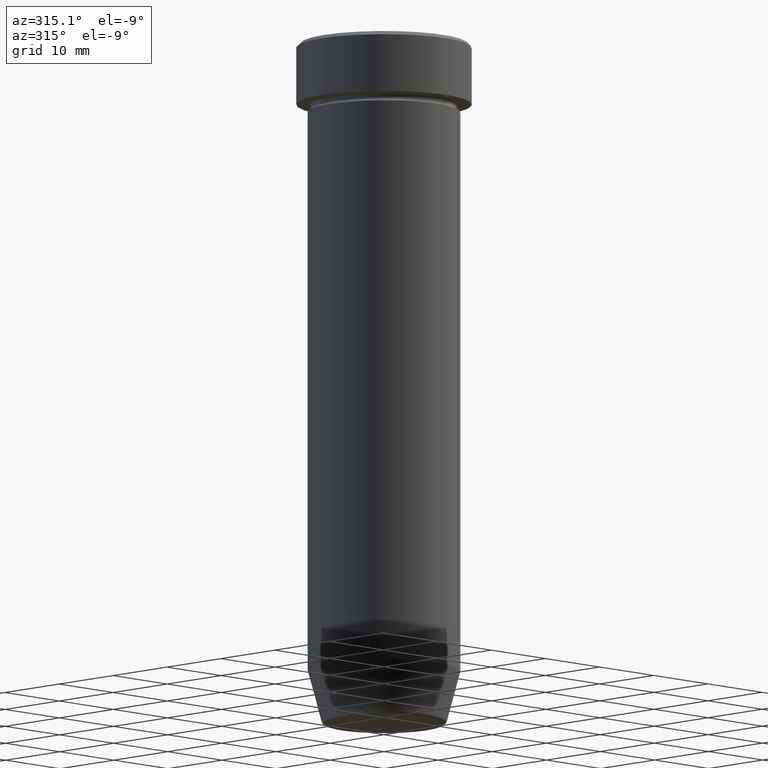
[diagram: clean part render]
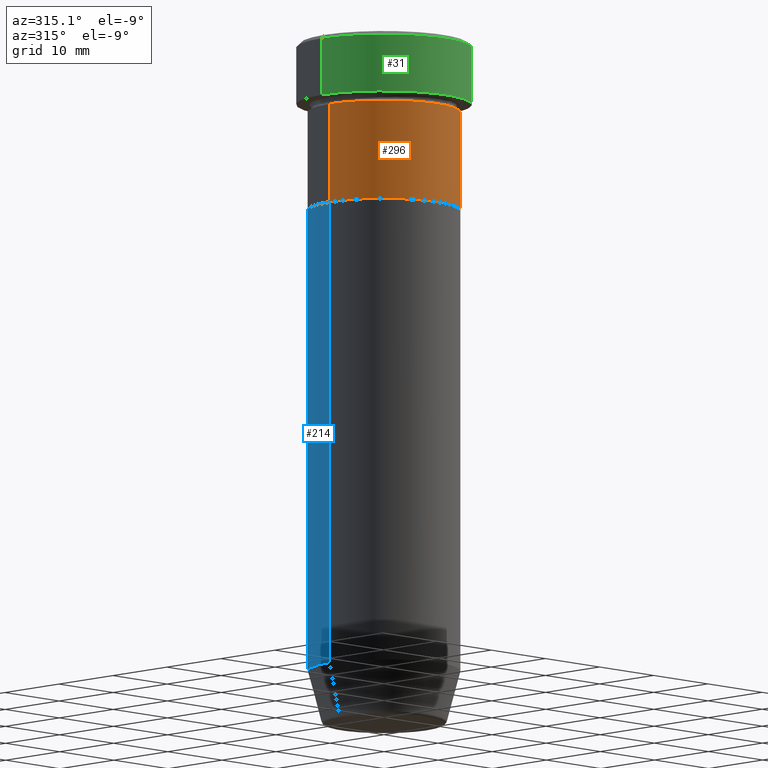
[diagram: same view with three faces highlighted in distinct colors, each labeled with its STEP entity id]
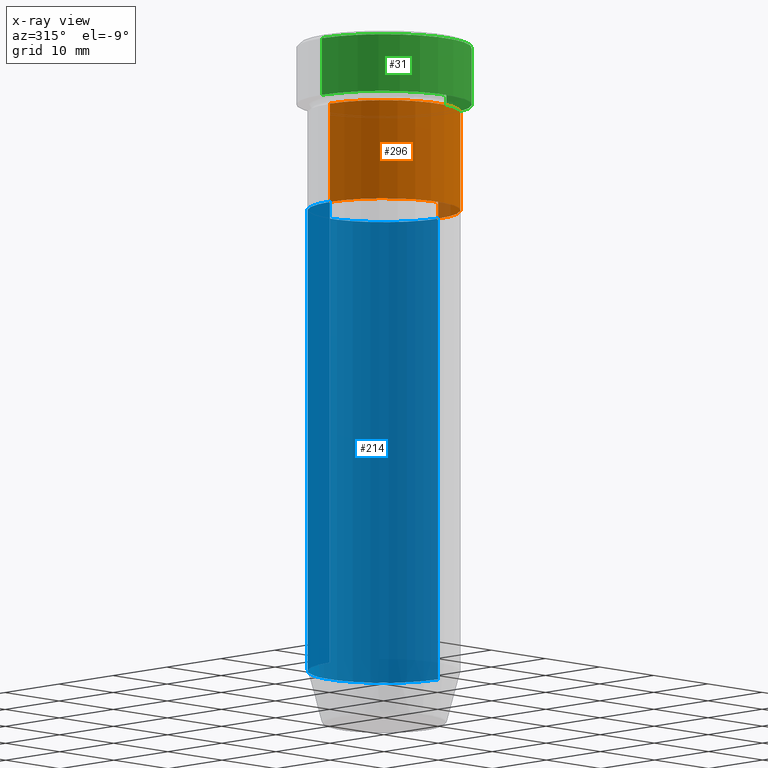
[diagram: x-ray of the same camera — body ghosted, the three highlighted faces saturated]
A machine part, auxiliary view with three faces highlighted in distinct colors.
The next image is the same camera in x-ray (body ghosted, the three faces saturated) — at least one of them is partly hidden behind the body in this view.
Their STEP definitions:

[orange] entity #296 — the highlighted cylindrical surface (partial cylindrical patch) has radius 10 mm, axis along (-0, -0, 1).
#25 = EDGE_CURVE ( 'NONE', #370, #295, #159, .T. ) ;
#55 = VERTEX_POINT ( 'NONE', #534 ) ;
#85 = ORIENTED_EDGE ( 'NONE', *, *, #590, .F. ) ;
#87 = VECTOR ( 'NONE', #357, 1000.000000000000000 ) ;
#89 = EDGE_LOOP ( 'NONE', ( #290, #545, #321, #85 ) ) ;
#114 = CARTESIAN_POINT ( 'NONE',  ( 0.000000000000000000, 0.000000000000000000, -9.000000000000001776 ) ) ;
#133 = DIRECTION ( 'NONE',  ( -0.000000000000000000, -0.000000000000000000, 1.000000000000000000 ) ) ;
#143 = CIRCLE ( 'NONE', #416, 10.00000000000000000 ) ;
#150 = DIRECTION ( 'NONE',  ( 1.000000000000000000, 0.000000000000000000, 0.000000000000000000 ) ) ;
#153 = CARTESIAN_POINT ( 'NONE',  ( 10.00000000000000000, 0.000000000000000000, -9.000000000000001776 ) ) ;
#159 = LINE ( 'NONE', #584, #87 ) ;
#189 = DIRECTION ( 'NONE',  ( 1.000000000000000000, 0.000000000000000000, 0.000000000000000000 ) ) ;
#237 = EDGE_CURVE ( 'NONE', #55, #383, #418, .T. ) ;
#252 = DIRECTION ( 'NONE',  ( 1.000000000000000000, 0.000000000000000000, 0.000000000000000000 ) ) ;
#264 = EDGE_CURVE ( 'NONE', #370, #55, #278, .T. ) ;
#278 = CIRCLE ( 'NONE', #299, 10.00000000000000000 ) ;
#290 = ORIENTED_EDGE ( 'NONE', *, *, #25, .F. ) ;
#295 = VERTEX_POINT ( 'NONE', #411 ) ;
#296 = ADVANCED_FACE ( 'NONE', ( #367 ), #598, .T. ) ;
#299 = AXIS2_PLACEMENT_3D ( 'NONE', #556, #313, #189 ) ;
#313 = DIRECTION ( 'NONE',  ( -0.000000000000000000, -0.000000000000000000, 1.000000000000000000 ) ) ;
#321 = ORIENTED_EDGE ( 'NONE', *, *, #237, .T. ) ;
#345 = CARTESIAN_POINT ( 'NONE',  ( -10.00000000000000000, 1.224646799147353256E-15, -22.00000000000000000 ) ) ;
#349 = VECTOR ( 'NONE', #133, 1000.000000000000000 ) ;
#357 = DIRECTION ( 'NONE',  ( -0.000000000000000000, -0.000000000000000000, 1.000000000000000000 ) ) ;
#359 = DIRECTION ( 'NONE',  ( -0.000000000000000000, -0.000000000000000000, 1.000000000000000000 ) ) ;
#367 = FACE_OUTER_BOUND ( 'NONE', #89, .T. ) ;
#369 = CARTESIAN_POINT ( 'NONE',  ( 0.000000000000000000, 0.000000000000000000, 0.000000000000000000 ) ) ;
#370 = VERTEX_POINT ( 'NONE', #345 ) ;
#383 = VERTEX_POINT ( 'NONE', #153 ) ;
#411 = CARTESIAN_POINT ( 'NONE',  ( -10.00000000000000000, 1.224646799147353256E-15, -9.000000000000001776 ) ) ;
#416 = AXIS2_PLACEMENT_3D ( 'NONE', #114, #359, #252 ) ;
#418 = LINE ( 'NONE', #594, #349 ) ;
#482 = AXIS2_PLACEMENT_3D ( 'NONE', #369, #553, #150 ) ;
#534 = CARTESIAN_POINT ( 'NONE',  ( 10.00000000000000000, 0.000000000000000000, -22.00000000000000000 ) ) ;
#545 = ORIENTED_EDGE ( 'NONE', *, *, #264, .T. ) ;
#553 = DIRECTION ( 'NONE',  ( -0.000000000000000000, -0.000000000000000000, 1.000000000000000000 ) ) ;
#556 = CARTESIAN_POINT ( 'NONE',  ( 0.000000000000000000, 0.000000000000000000, -22.00000000000000000 ) ) ;
#584 = CARTESIAN_POINT ( 'NONE',  ( -10.00000000000000000, 1.224646799147353256E-15, 0.000000000000000000 ) ) ;
#590 = EDGE_CURVE ( 'NONE', #295, #383, #143, .T. ) ;
#594 = CARTESIAN_POINT ( 'NONE',  ( 10.00000000000000000, 0.000000000000000000, 0.000000000000000000 ) ) ;
#598 = CYLINDRICAL_SURFACE ( 'NONE', #482, 10.00000000000000000 ) ;

[blue] entity #214 — the highlighted cylindrical surface (partial cylindrical patch) has radius 10 mm, axis along (-0, -0, 1).
#9 = ORIENTED_EDGE ( 'NONE', *, *, #377, .T. ) ;
#50 = CARTESIAN_POINT ( 'NONE',  ( -10.00000000000000000, 1.224646799147353256E-15, -22.00000000000000000 ) ) ;
#72 = CARTESIAN_POINT ( 'NONE',  ( 0.000000000000000000, 0.000000000000000000, -82.99999999999998579 ) ) ;
#92 = VERTEX_POINT ( 'NONE', #308 ) ;
#102 = VERTEX_POINT ( 'NONE', #580 ) ;
#113 = AXIS2_PLACEMENT_3D ( 'NONE', #478, #382, #281 ) ;
#142 = EDGE_CURVE ( 'NONE', #102, #92, #480, .T. ) ;
#175 = DIRECTION ( 'NONE',  ( -0.000000000000000000, -0.000000000000000000, 1.000000000000000000 ) ) ;
#179 = CYLINDRICAL_SURFACE ( 'NONE', #212, 9.999999999999998224 ) ;
#184 = DIRECTION ( 'NONE',  ( -0.000000000000000000, -0.000000000000000000, 1.000000000000000000 ) ) ;
#193 = VECTOR ( 'NONE', #288, 1000.000000000000000 ) ;
#196 = CARTESIAN_POINT ( 'NONE',  ( -9.999999999999998224, 1.224646799147353059E-15, 0.000000000000000000 ) ) ;
#212 = AXIS2_PLACEMENT_3D ( 'NONE', #261, #184, #273 ) ;
#214 = ADVANCED_FACE ( 'NONE', ( #407 ), #179, .T. ) ;
#236 = EDGE_LOOP ( 'NONE', ( #363, #9, #516, #293 ) ) ;
#244 = LINE ( 'NONE', #196, #193 ) ;
#248 = VECTOR ( 'NONE', #175, 1000.000000000000000 ) ;
#261 = CARTESIAN_POINT ( 'NONE',  ( 0.000000000000000000, 0.000000000000000000, 0.000000000000000000 ) ) ;
#273 = DIRECTION ( 'NONE',  ( 1.000000000000000000, 0.000000000000000000, 0.000000000000000000 ) ) ;
#281 = DIRECTION ( 'NONE',  ( 1.000000000000000000, 0.000000000000000000, 0.000000000000000000 ) ) ;
#288 = DIRECTION ( 'NONE',  ( -0.000000000000000000, -0.000000000000000000, 1.000000000000000000 ) ) ;
#293 = ORIENTED_EDGE ( 'NONE', *, *, #492, .F. ) ;
#308 = CARTESIAN_POINT ( 'NONE',  ( -9.999999999999998224, 1.224646799147353059E-15, -82.99999999999998579 ) ) ;
#327 = VERTEX_POINT ( 'NONE', #50 ) ;
#335 = CARTESIAN_POINT ( 'NONE',  ( 10.00000000000000000, 0.000000000000000000, -22.00000000000000000 ) ) ;
#341 = AXIS2_PLACEMENT_3D ( 'NONE', #72, #538, #446 ) ;
#343 = EDGE_CURVE ( 'NONE', #436, #327, #385, .T. ) ;
#363 = ORIENTED_EDGE ( 'NONE', *, *, #142, .T. ) ;
#377 = EDGE_CURVE ( 'NONE', #92, #327, #244, .T. ) ;
#382 = DIRECTION ( 'NONE',  ( -0.000000000000000000, -0.000000000000000000, 1.000000000000000000 ) ) ;
#385 = CIRCLE ( 'NONE', #113, 10.00000000000000000 ) ;
#407 = FACE_OUTER_BOUND ( 'NONE', #236, .T. ) ;
#436 = VERTEX_POINT ( 'NONE', #335 ) ;
#446 = DIRECTION ( 'NONE',  ( 1.000000000000000000, 0.000000000000000000, 0.000000000000000000 ) ) ;
#449 = CARTESIAN_POINT ( 'NONE',  ( 9.999999999999998224, 0.000000000000000000, 0.000000000000000000 ) ) ;
#478 = CARTESIAN_POINT ( 'NONE',  ( 0.000000000000000000, 0.000000000000000000, -22.00000000000000000 ) ) ;
#480 = CIRCLE ( 'NONE', #341, 9.999999999999998224 ) ;
#492 = EDGE_CURVE ( 'NONE', #102, #436, #528, .T. ) ;
#516 = ORIENTED_EDGE ( 'NONE', *, *, #343, .F. ) ;
#528 = LINE ( 'NONE', #449, #248 ) ;
#538 = DIRECTION ( 'NONE',  ( -0.000000000000000000, -0.000000000000000000, 1.000000000000000000 ) ) ;
#580 = CARTESIAN_POINT ( 'NONE',  ( 9.999999999999998224, 0.000000000000000000, -82.99999999999998579 ) ) ;

[green] entity #31 — the highlighted cylindrical surface (partial cylindrical patch) has radius 11.5 mm, axis along (-0, -0, 1).
#22 = CARTESIAN_POINT ( 'NONE',  ( 0.000000000000000000, 0.000000000000000000, -0.5000000000000073275 ) ) ;
#23 = DIRECTION ( 'NONE',  ( -0.000000000000000000, -0.000000000000000000, 1.000000000000000000 ) ) ;
#28 = LINE ( 'NONE', #216, #535 ) ;
#31 = ADVANCED_FACE ( 'NONE', ( #305 ), #348, .T. ) ;
#63 = CARTESIAN_POINT ( 'NONE',  ( -11.50000000000000000, 1.408343819019456176E-15, -0.5000000000000073275 ) ) ;
#74 = EDGE_CURVE ( 'NONE', #474, #525, #28, .T. ) ;
#83 = EDGE_CURVE ( 'NONE', #134, #506, #260, .T. ) ;
#93 = AXIS2_PLACEMENT_3D ( 'NONE', #564, #337, #523 ) ;
#116 = DIRECTION ( 'NONE',  ( 1.000000000000000000, 0.000000000000000000, 0.000000000000000000 ) ) ;
#134 = VERTEX_POINT ( 'NONE', #537 ) ;
#151 = EDGE_LOOP ( 'NONE', ( #323, #386, #331, #298 ) ) ;
#216 = CARTESIAN_POINT ( 'NONE',  ( 11.50000000000000000, 0.000000000000000000, 0.000000000000000000 ) ) ;
#220 = CARTESIAN_POINT ( 'NONE',  ( 11.50000000000000000, 0.000000000000000000, -8.000000000000000000 ) ) ;
#227 = AXIS2_PLACEMENT_3D ( 'NONE', #22, #301, #404 ) ;
#243 = VECTOR ( 'NONE', #259, 1000.000000000000000 ) ;
#259 = DIRECTION ( 'NONE',  ( -0.000000000000000000, -0.000000000000000000, 1.000000000000000000 ) ) ;
#260 = LINE ( 'NONE', #354, #243 ) ;
#298 = ORIENTED_EDGE ( 'NONE', *, *, #486, .T. ) ;
#301 = DIRECTION ( 'NONE',  ( 0.000000000000000000, 0.000000000000000000, -1.000000000000000000 ) ) ;
#305 = FACE_OUTER_BOUND ( 'NONE', #151, .T. ) ;
#323 = ORIENTED_EDGE ( 'NONE', *, *, #83, .F. ) ;
#331 = ORIENTED_EDGE ( 'NONE', *, *, #74, .T. ) ;
#337 = DIRECTION ( 'NONE',  ( -0.000000000000000000, -0.000000000000000000, 1.000000000000000000 ) ) ;
#348 = CYLINDRICAL_SURFACE ( 'NONE', #455, 11.50000000000000000 ) ;
#354 = CARTESIAN_POINT ( 'NONE',  ( -11.50000000000000000, 1.408343819019456176E-15, 0.000000000000000000 ) ) ;
#386 = ORIENTED_EDGE ( 'NONE', *, *, #430, .T. ) ;
#404 = DIRECTION ( 'NONE',  ( 1.000000000000000000, 0.000000000000000000, 0.000000000000000000 ) ) ;
#406 = CARTESIAN_POINT ( 'NONE',  ( 11.50000000000000000, 0.000000000000000000, -0.5000000000000073275 ) ) ;
#430 = EDGE_CURVE ( 'NONE', #134, #474, #578, .T. ) ;
#455 = AXIS2_PLACEMENT_3D ( 'NONE', #585, #541, #116 ) ;
#474 = VERTEX_POINT ( 'NONE', #220 ) ;
#486 = EDGE_CURVE ( 'NONE', #525, #506, #493, .T. ) ;
#493 = CIRCLE ( 'NONE', #227, 11.50000000000000000 ) ;
#506 = VERTEX_POINT ( 'NONE', #63 ) ;
#523 = DIRECTION ( 'NONE',  ( 1.000000000000000000, 0.000000000000000000, 0.000000000000000000 ) ) ;
#525 = VERTEX_POINT ( 'NONE', #406 ) ;
#535 = VECTOR ( 'NONE', #23, 1000.000000000000000 ) ;
#537 = CARTESIAN_POINT ( 'NONE',  ( -11.50000000000000000, 1.408343819019456176E-15, -8.000000000000000000 ) ) ;
#541 = DIRECTION ( 'NONE',  ( -0.000000000000000000, -0.000000000000000000, 1.000000000000000000 ) ) ;
#564 = CARTESIAN_POINT ( 'NONE',  ( 0.000000000000000000, 0.000000000000000000, -8.000000000000000000 ) ) ;
#578 = CIRCLE ( 'NONE', #93, 11.50000000000000000 ) ;
#585 = CARTESIAN_POINT ( 'NONE',  ( 0.000000000000000000, 0.000000000000000000, 0.000000000000000000 ) ) ;